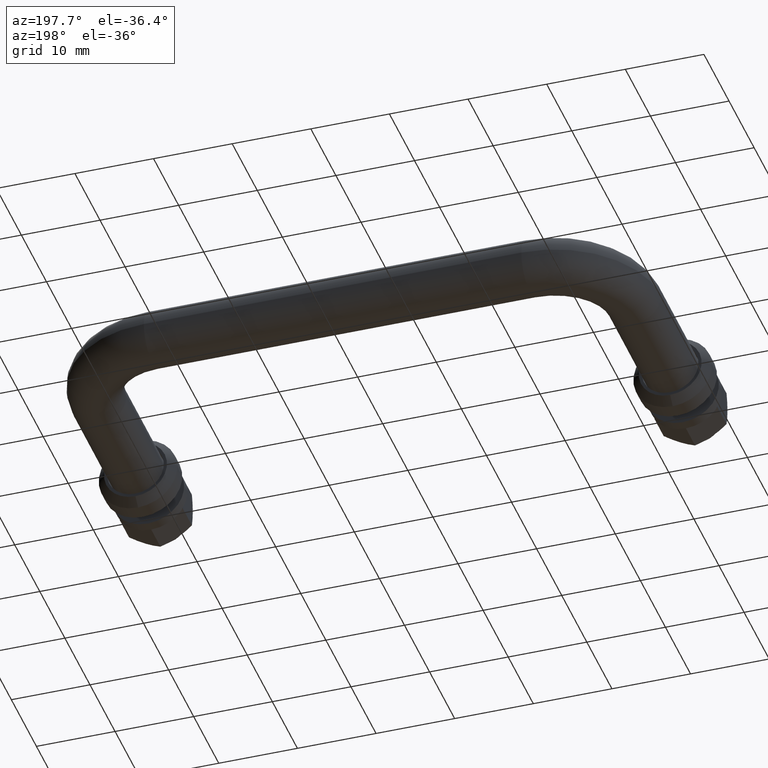
[diagram: clean part render]
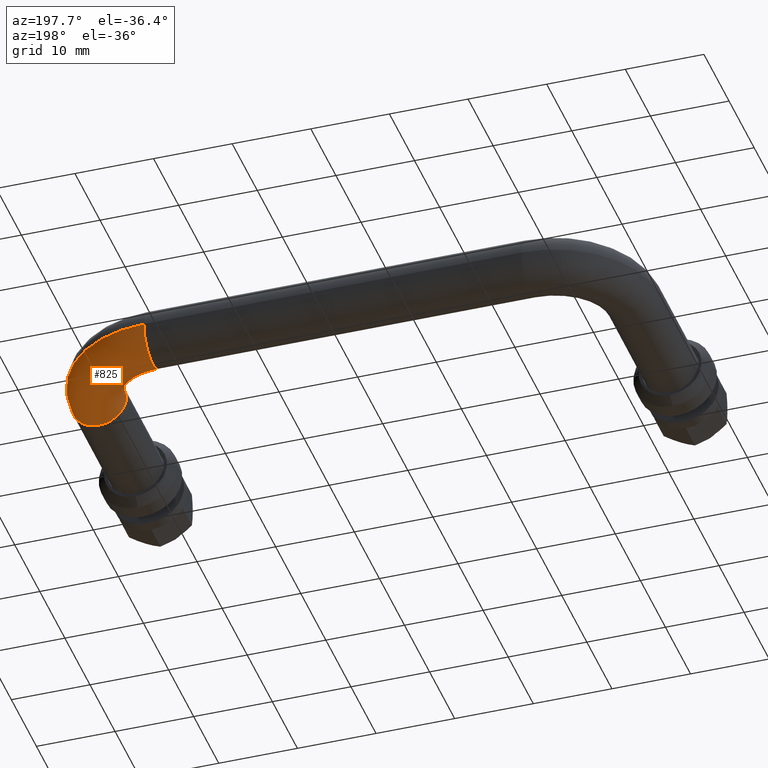
[diagram: same view with one face highlighted and labeled with its STEP entity id]
A machine part, auxiliary view. The second image highlights one B-rep face of the part: STEP entity #825.
In plain terms, the highlighted toroidal blend (fillet) surface has major radius 10 mm and minor (blend) radius 3.5 mm.
Its self-contained STEP definition (entity closure, byte-faithful):
#32 = CARTESIAN_POINT ( 'NONE',  ( 23.99999999999998900, 16.50000000000001100, 0.0000000000000000000 ) ) ;
#41 = CARTESIAN_POINT ( 'NONE',  ( 24.00000000000000700, 30.00000000000001100, 0.0000000000000000000 ) ) ;
#44 = EDGE_CURVE ( 'NONE', #1212, #1539, #702, .T. ) ;
#162 = DIRECTION ( 'NONE',  ( -1.000000000000000000, 0.0000000000000000000, 0.0000000000000000000 ) ) ;
#166 = CIRCLE ( 'NONE', #1635, 3.500000000000000000 ) ;
#196 = TOROIDAL_SURFACE ( 'NONE', #1595, 9.999999999999998200, 3.500000000000000000 ) ;
#246 = EDGE_CURVE ( 'NONE', #1539, #830, #166, .T. ) ;
#253 = EDGE_CURVE ( 'NONE', #1670, #668, #1657, .T. ) ;
#259 = DIRECTION ( 'NONE',  ( 1.000000000000000000, 6.123233995736766000E-017, 0.0000000000000000000 ) ) ;
#397 = CARTESIAN_POINT ( 'NONE',  ( 33.99999999999998600, 16.49999999999999300, 0.0000000000000000000 ) ) ;
#407 = DIRECTION ( 'NONE',  ( -0.0000000000000000000, -0.0000000000000000000, -1.000000000000000000 ) ) ;
#554 = DIRECTION ( 'NONE',  ( 0.0000000000000000000, 0.0000000000000000000, 1.000000000000000000 ) ) ;
#566 = CARTESIAN_POINT ( 'NONE',  ( 23.99999999999998900, 16.50000000000001100, 4.286263797015736600E-016 ) ) ;
#577 = AXIS2_PLACEMENT_3D ( 'NONE', #566, #407, #1752 ) ;
#595 = DIRECTION ( 'NONE',  ( 3.445092848397666500E-016, -1.000000000000000000, 0.0000000000000000000 ) ) ;
#604 = CARTESIAN_POINT ( 'NONE',  ( 30.49999999999998900, 16.49999999999999300, 4.286263797015737100E-016 ) ) ;
#626 = ORIENTED_EDGE ( 'NONE', *, *, #246, .F. ) ;
#632 = CARTESIAN_POINT ( 'NONE',  ( 23.99999999999998900, 16.50000000000001100, 0.0000000000000000000 ) ) ;
#651 = EDGE_CURVE ( 'NONE', #1212, #1670, #1802, .T. ) ;
#668 = VERTEX_POINT ( 'NONE', #1113 ) ;
#702 = CIRCLE ( 'NONE', #577, 6.499999999999999100 ) ;
#825 = ADVANCED_FACE ( 'NONE', ( #948 ), #196, .T. ) ;
#830 = VERTEX_POINT ( 'NONE', #906 ) ;
#853 = ORIENTED_EDGE ( 'NONE', *, *, #44, .F. ) ;
#876 = EDGE_LOOP ( 'NONE', ( #1766, #1299, #1789, #626, #853 ) ) ;
#906 = CARTESIAN_POINT ( 'NONE',  ( 33.99999999999998600, 16.49999999999999300, -3.500000000000000000 ) ) ;
#948 = FACE_OUTER_BOUND ( 'NONE', #876, .T. ) ;
#972 = DIRECTION ( 'NONE',  ( 3.445092848397666500E-016, -1.000000000000000000, 0.0000000000000000000 ) ) ;
#1016 = DIRECTION ( 'NONE',  ( -0.0000000000000000000, -0.0000000000000000000, -1.000000000000000000 ) ) ;
#1049 = EDGE_CURVE ( 'NONE', #830, #668, #1654, .T. ) ;
#1061 = DIRECTION ( 'NONE',  ( -1.000000000000000000, 0.0000000000000000000, 0.0000000000000000000 ) ) ;
#1113 = CARTESIAN_POINT ( 'NONE',  ( 37.49999999999999300, 16.49999999999999300, 0.0000000000000000000 ) ) ;
#1118 = DIRECTION ( 'NONE',  ( 0.0000000000000000000, 0.0000000000000000000, 1.000000000000000000 ) ) ;
#1180 = CARTESIAN_POINT ( 'NONE',  ( 33.99999999999998600, 16.49999999999999300, 0.0000000000000000000 ) ) ;
#1212 = VERTEX_POINT ( 'NONE', #1459 ) ;
#1216 = AXIS2_PLACEMENT_3D ( 'NONE', #1255, #259, #1118 ) ;
#1255 = CARTESIAN_POINT ( 'NONE',  ( 24.00000000000000700, 26.50000000000001100, 0.0000000000000000000 ) ) ;
#1299 = ORIENTED_EDGE ( 'NONE', *, *, #253, .T. ) ;
#1459 = CARTESIAN_POINT ( 'NONE',  ( 24.00000000000000700, 23.00000000000001100, 4.286263797015737100E-016 ) ) ;
#1539 = VERTEX_POINT ( 'NONE', #604 ) ;
#1595 = AXIS2_PLACEMENT_3D ( 'NONE', #632, #1758, #1061 ) ;
#1635 = AXIS2_PLACEMENT_3D ( 'NONE', #397, #972, #554 ) ;
#1654 = CIRCLE ( 'NONE', #1759, 3.500000000000000000 ) ;
#1657 = CIRCLE ( 'NONE', #1731, 13.49999999999999800 ) ;
#1670 = VERTEX_POINT ( 'NONE', #41 ) ;
#1706 = DIRECTION ( 'NONE',  ( 0.0000000000000000000, 0.0000000000000000000, 1.000000000000000000 ) ) ;
#1731 = AXIS2_PLACEMENT_3D ( 'NONE', #32, #1016, #162 ) ;
#1752 = DIRECTION ( 'NONE',  ( -1.000000000000000000, 0.0000000000000000000, 0.0000000000000000000 ) ) ;
#1758 = DIRECTION ( 'NONE',  ( -0.0000000000000000000, -0.0000000000000000000, -1.000000000000000000 ) ) ;
#1759 = AXIS2_PLACEMENT_3D ( 'NONE', #1180, #595, #1706 ) ;
#1766 = ORIENTED_EDGE ( 'NONE', *, *, #651, .T. ) ;
#1789 = ORIENTED_EDGE ( 'NONE', *, *, #1049, .F. ) ;
#1802 = CIRCLE ( 'NONE', #1216, 3.500000000000000000 ) ;